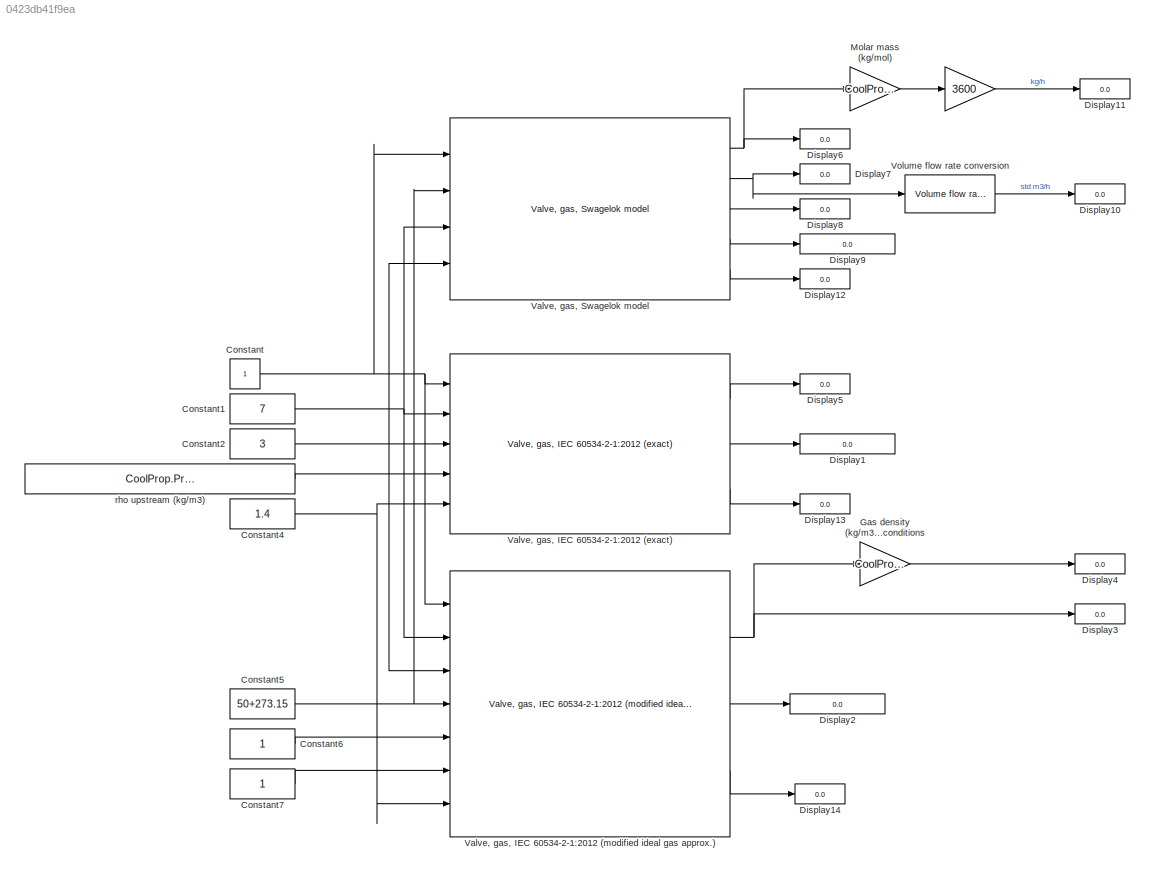
MODEL slx_0423db41f9ea
KIND model
CONFIG AbsTol = auto
CONFIG EnableMultiTasking = off
CONFIG FixedStep = auto
CONFIG MaxStep = auto
CONFIG MinStep = auto
CONFIG RelTol = 1e-3
CONFIG SampleTimeConstraint = Unconstrained
CONFIG Solver = VariableStepAuto
CONFIG SolverName = VariableStepAuto
CONFIG StartTime = 0.0
CONFIG StopTime = 0
BLOCK [Gain]  
  Gain = 3600
  OutDataTypeStr = Inherit: Inherit via internal rule
  ParamDataTypeStr = Inherit: Inherit via internal rule
  SaturateOnIntegerOverflow = off
BLOCK [Constant] Constant
BLOCK [Constant] Constant1
  Value = 7
BLOCK [Constant] Constant2
  Value = 3
BLOCK [Constant] Constant4
  Value = 1.4
BLOCK [Constant] Constant5
  Value = 50+273.15
BLOCK [Constant] Constant6
BLOCK [Constant] Constant7
BLOCK [Display] Display1
  Decimation = 1
  Ports = [1]
BLOCK [Display] Display10
  Decimation = 1
  Ports = [1]
BLOCK [Display] Display11
  Decimation = 1
  Ports = [1]
BLOCK [Display] Display12
  Decimation = 1
  Ports = [1]
BLOCK [Display] Display13
  Decimation = 1
  Ports = [1]
BLOCK [Display] Display14
  Decimation = 1
  Ports = [1]
BLOCK [Display] Display2
  Decimation = 1
  Ports = [1]
BLOCK [Display] Display3
  Decimation = 1
  Ports = [1]
BLOCK [Display] Display4
  Decimation = 1
  Ports = [1]
BLOCK [Display] Display5
  Decimation = 1
  Ports = [1]
BLOCK [Display] Display6
  Decimation = 1
  Ports = [1]
BLOCK [Display] Display7
  Decimation = 1
  Ports = [1]
BLOCK [Display] Display8
  Decimation = 1
  Ports = [1]
BLOCK [Display] Display9
  Decimation = 1
  Ports = [1]
BLOCK [Gain] Gas density (kg//m3) at 'old' standard conditions
  Gain = CoolProp.PropsSI('Dmass','T',15.56+273.15,'P',1.0133e5,'Air')
  OutDataTypeStr = Inherit: Inherit via internal rule
  ParamDataTypeStr = Inherit: Inherit via internal rule
  SaturateOnIntegerOverflow = off
BLOCK [Gain] Molar mass (kg//mol)
  Gain = CoolProp.Props1SI('M','Air')
  OutDataTypeStr = Inherit: Inherit via internal rule
  ParamDataTypeStr = Inherit: Inherit via internal rule
  SaturateOnIntegerOverflow = off
BLOCK [Reference] Valve, gas, IEC 60534-2-1:2012 (exact)  REF=thermochemical/Valves/Valve, gas, IEC 60534-2-1:2012 (exact)  (lib defined in slx_f9e0643dc704)
  Ports = [5, 3]
  SourceBlock = thermochemical/Valves/Valve, gas, IEC 60534-2-1:2012 (exact)
  SourceProductName = @ Thermochemical
  SourceType = valve_gas_IEC60534_2_1_exact
BLOCK [Reference] Valve, gas, IEC 60534-2-1:2012 (modified ideal gas approx.)  REF=thermochemical/Valves/Valve, gas, IEC 60534-2-1:2012 (modified ideal gas approx.)  (lib defined in slx_f9e0643dc704)
  Ports = [7, 3]
  SourceBlock = thermochemical/Valves/Valve, gas, IEC 60534-2-1:2012 (modified ideal gas approx.)
  SourceProductName = @ Thermochemical
  SourceType = valve_gas_IEC60534_2_1_ideal_gas
BLOCK [Reference] Valve, gas, Swagelok model  REF=thermochemical/Valves/Valve, gas, Swagelok model  (lib defined in slx_f9e0643dc704)
  Ports = [4, 5]
  SourceBlock = thermochemical/Valves/Valve, gas, Swagelok model
  SourceProductName = @ Thermochemical
  SourceType = valve_gas_Swagelok
BLOCK [Reference] Volume flow rate conversion  REF=thermochemical/Conversions/Volume flow rate  (lib defined in slx_f9e0643dc704)
conversion
  Ports = [1, 1]
  SourceBlock = thermochemical/Conversions/Volume flow rate\nconversion
  SourceProductName = @ Thermochemical
  SourceType = convert_volume_flow
BLOCK [Constant] rho upstream (kg//m3)
  Value = CoolProp.PropsSI('Dmass','T',50+273.15,'P',7*1e5,'Air')
LINE  :1 -> Display11:1
NET Constant1:1 -> Valve, gas, IEC 60534-2-1:2012 (exact):2, Valve, gas, IEC 60534-2-1:2012 (modified ideal gas approx.):2, Valve, gas, Swagelok model:3
NET Constant2:1 -> Valve, gas, IEC 60534-2-1:2012 (exact):3, Valve, gas, IEC 60534-2-1:2012 (modified ideal gas approx.):3, Valve, gas, Swagelok model:4
NET Constant4:1 -> Valve, gas, IEC 60534-2-1:2012 (exact):5, Valve, gas, IEC 60534-2-1:2012 (modified ideal gas approx.):7
NET Constant5:1 -> Valve, gas, IEC 60534-2-1:2012 (modified ideal gas approx.):4, Valve, gas, Swagelok model:2
LINE Constant6:1 -> Valve, gas, IEC 60534-2-1:2012 (modified ideal gas approx.):5
LINE Constant7:1 -> Valve, gas, IEC 60534-2-1:2012 (modified ideal gas approx.):6
NET Constant:1 -> Valve, gas, IEC 60534-2-1:2012 (exact):1, Valve, gas, IEC 60534-2-1:2012 (modified ideal gas approx.):1, Valve, gas, Swagelok model:1
LINE Gas density (kg//m3) at 'old' standard conditions:1 -> Display4:1
LINE Molar mass (kg//mol):1 ->  :1
LINE Valve, gas, IEC 60534-2-1:2012 (exact):1 -> Display5:1
LINE Valve, gas, IEC 60534-2-1:2012 (exact):2 -> Display1:1
LINE Valve, gas, IEC 60534-2-1:2012 (exact):3 -> Display13:1
NET Valve, gas, IEC 60534-2-1:2012 (modified ideal gas approx.):1 -> Display3:1, Gas density (kg//m3) at 'old' standard conditions:1
LINE Valve, gas, IEC 60534-2-1:2012 (modified ideal gas approx.):2 -> Display2:1
LINE Valve, gas, IEC 60534-2-1:2012 (modified ideal gas approx.):3 -> Display14:1
NET Valve, gas, Swagelok model:1 -> Display6:1, Molar mass (kg//mol):1
NET Valve, gas, Swagelok model:2 -> Display7:1, Volume flow rate conversion:1
LINE Valve, gas, Swagelok model:3 -> Display8:1
LINE Valve, gas, Swagelok model:4 -> Display9:1
LINE Valve, gas, Swagelok model:5 -> Display12:1
LINE Volume flow rate conversion:1 -> Display10:1
LINE rho upstream (kg//m3):1 -> Valve, gas, IEC 60534-2-1:2012 (exact):4
note: NET lines group one-source signal fan-out (src -> all destinations, sorted); 1:1 wires keep LINE
